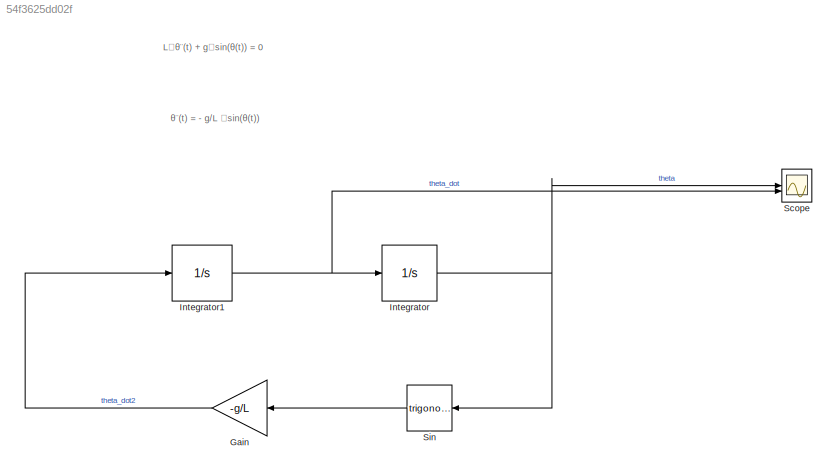
MODEL slx_54f3625dd02f
KIND model
CONFIG AbsTol = auto
CONFIG EnableMultiTasking = off
CONFIG FixedStep = auto
CONFIG MaxStep = 1e-3
CONFIG MinStep = auto
CONFIG RelTol = 1e-3
CONFIG SampleTimeConstraint = Unconstrained
CONFIG SolverName = ode45
CONFIG StartTime = 0.0
CONFIG StopTime = 10.0
BLOCK [Gain] Gain
  Gain = -g/L
BLOCK [Integrator] Integrator
  InitialCondition = 2
BLOCK [Integrator] Integrator1
BLOCK [Scope] Scope
  Floating = off
  NumInputPorts = 2
  ScopeSpecificationString = Simulink.scopes.TimeScopeBlockCfg('CurrentConfiguration', extmgr.ConfigurationSet(extmgr.Configuration('Core','General UI',true),extmgr.Configuration('Core','Source UI',true),extmgr.Configuration('Sources','WiredSimulink',true),extmgr.Configuration('Visuals','Time Domain',true,'SerializedDisplays',{struct('MinYLimReal','-2.5','MaxYLimReal','2.5','YLabelReal','','MinYLimMag','0.00000','MaxYLimMag',...<+1957ch>
BLOCK [Trigonometry] Sin
ANNOTATION (root): L ⋅θ¨(t) + g⋅sin(θ(t)) = 0
ANNOTATION (root): θ ¨( t ) = - g/L ⋅sin( θ ( t ))
LINE Gain:1 -> Integrator1:1
NET Integrator1:1 -> Integrator:1, Scope:2
NET Integrator:1 -> Scope:1, Sin:1
LINE Sin:1 -> Gain:1
note: NET lines group one-source signal fan-out (src -> all destinations, sorted); 1:1 wires keep LINE
